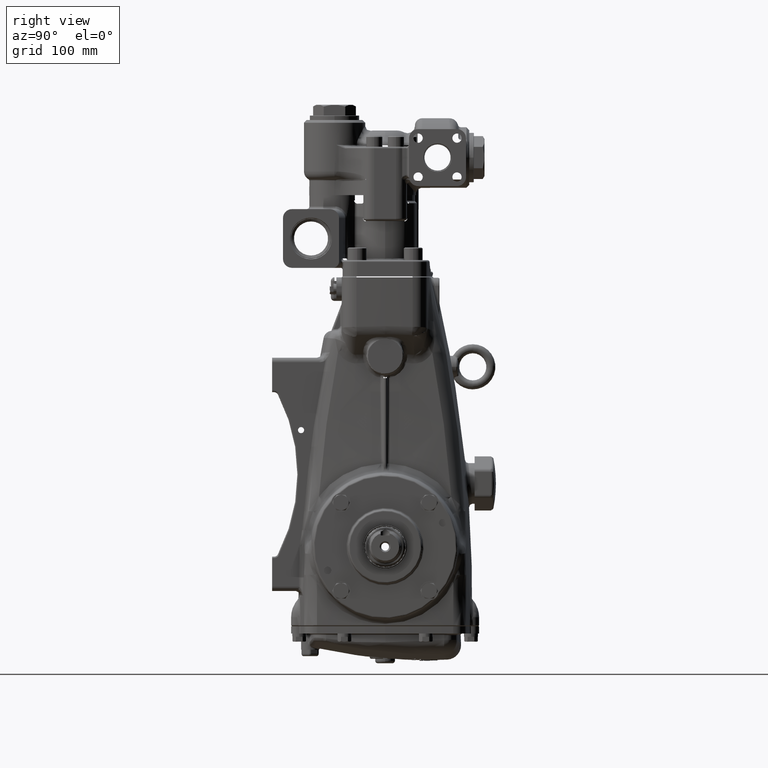
[diagram: clean part render]
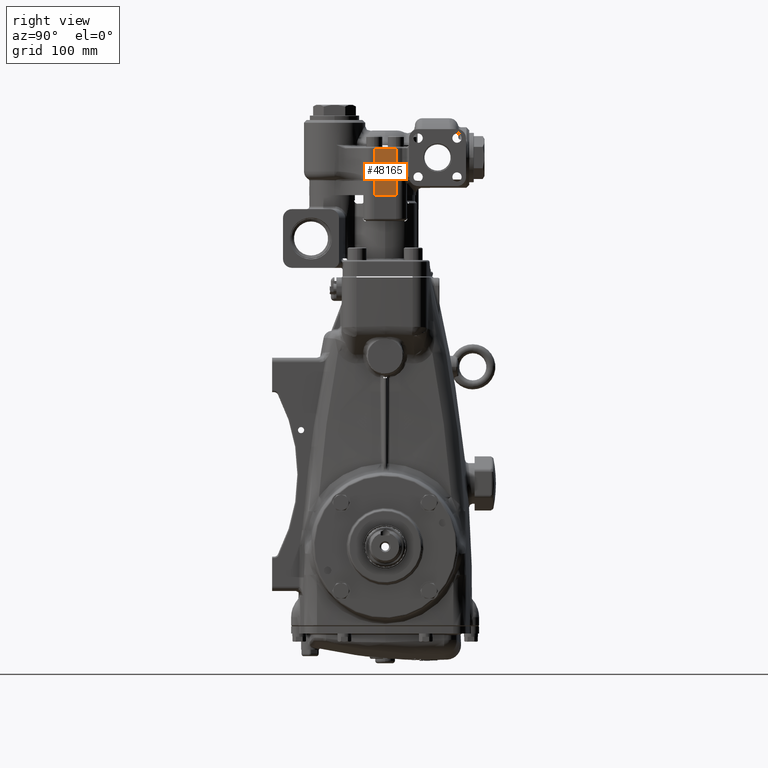
[diagram: same view with one face highlighted and labeled with its STEP entity id]
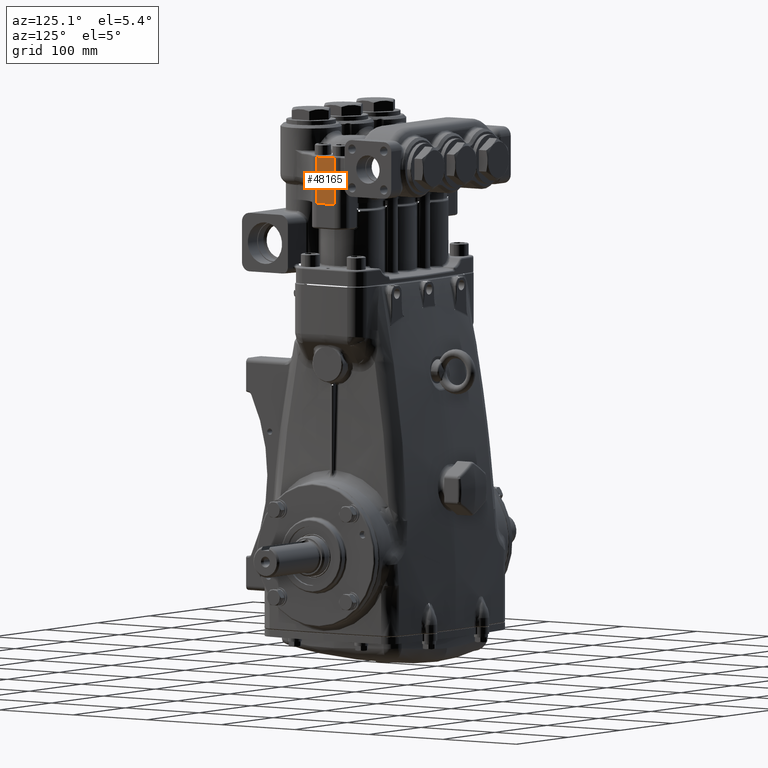
[diagram: same view with one face highlighted and labeled with its STEP entity id]
A machine part, right view. The second image highlights one B-rep face of the part: STEP entity #48165.
A second angle (auxiliary view) of the same face is appended — the face is thin or edge-on in the first view.
In plain terms, the highlighted planar face has unit normal (1, 0, -0).
Its self-contained STEP definition (entity closure, byte-faithful):
#4349 = CARTESIAN_POINT ( 'NONE',  ( 4.488188976377952777, -0.4724409448818860935, 15.31496062992126106 ) ) ;
#15024 = LINE ( 'NONE', #55716, #125857 ) ;
#19619 = EDGE_CURVE ( 'NONE', #69095, #127974, #15024, .T. ) ;
#21118 = CARTESIAN_POINT ( 'NONE',  ( 4.488188976377952777, -0.4724409448818861490, 17.42125984251968518 ) ) ;
#26021 = LINE ( 'NONE', #66702, #129391 ) ;
#30534 = ORIENTED_EDGE ( 'NONE', *, *, #68775, .F. ) ;
#39639 = LINE ( 'NONE', #80331, #53044 ) ;
#42014 = ORIENTED_EDGE ( 'NONE', *, *, #48465, .T. ) ;
#47556 = CARTESIAN_POINT ( 'NONE',  ( 4.488188976377952777, 0.4724409448818867596, 17.42125984251968518 ) ) ;
#48165 = ADVANCED_FACE ( 'NONE', ( #71830 ), #112485, .T. ) ;
#48465 = EDGE_CURVE ( 'NONE', #73851, #111071, #26021, .T. ) ;
#53044 = VECTOR ( 'NONE', #120995, 39.37007874015748143 ) ;
#53257 = EDGE_CURVE ( 'NONE', #69095, #73851, #39639, .T. ) ;
#55716 = CARTESIAN_POINT ( 'NONE',  ( 4.488188976377952777, 0.4724409448818868706, 17.34251968503937036 ) ) ;
#58704 = CARTESIAN_POINT ( 'NONE',  ( 4.488188976377952777, 0.4724409448818867596, 15.31496062992126106 ) ) ;
#61484 = ORIENTED_EDGE ( 'NONE', *, *, #53257, .T. ) ;
#61803 = DIRECTION ( 'NONE',  ( 1.000000000000000000, 0.0000000000000000000, -0.0000000000000000000 ) ) ;
#66702 = CARTESIAN_POINT ( 'NONE',  ( 4.488188976377952777, -0.4724409448818861490, 15.31496062992126106 ) ) ;
#68775 = EDGE_CURVE ( 'NONE', #127974, #111071, #69703, .T. ) ;
#69095 = VERTEX_POINT ( 'NONE', #76616 ) ;
#69703 = LINE ( 'NONE', #47556, #88888 ) ;
#71830 = FACE_OUTER_BOUND ( 'NONE', #104706, .T. ) ;
#73851 = VERTEX_POINT ( 'NONE', #4349 ) ;
#76616 = CARTESIAN_POINT ( 'NONE',  ( 4.488188976377952777, -0.4724409448818860935, 17.34251968503937036 ) ) ;
#80331 = CARTESIAN_POINT ( 'NONE',  ( 4.488188976377952777, -0.4724409448818860935, 17.42125984251968518 ) ) ;
#86586 = CARTESIAN_POINT ( 'NONE',  ( 4.488188976377952777, 0.4724409448818867596, 17.34251968503937036 ) ) ;
#86742 = AXIS2_PLACEMENT_3D ( 'NONE', #21118, #61803, #102520 ) ;
#88247 = DIRECTION ( 'NONE',  ( 0.0000000000000000000, 0.0000000000000000000, -1.000000000000000000 ) ) ;
#88888 = VECTOR ( 'NONE', #88247, 39.37007874015748143 ) ;
#96411 = DIRECTION ( 'NONE',  ( 0.0000000000000000000, 1.000000000000000000, 0.0000000000000000000 ) ) ;
#102520 = DIRECTION ( 'NONE',  ( 0.0000000000000000000, 0.0000000000000000000, 1.000000000000000000 ) ) ;
#104706 = EDGE_LOOP ( 'NONE', ( #61484, #42014, #30534, #105558 ) ) ;
#105558 = ORIENTED_EDGE ( 'NONE', *, *, #19619, .F. ) ;
#107386 = DIRECTION ( 'NONE',  ( 0.0000000000000000000, 1.000000000000000000, 0.0000000000000000000 ) ) ;
#111071 = VERTEX_POINT ( 'NONE', #58704 ) ;
#112485 = PLANE ( 'NONE',  #86742 ) ;
#120995 = DIRECTION ( 'NONE',  ( 0.0000000000000000000, 0.0000000000000000000, -1.000000000000000000 ) ) ;
#125857 = VECTOR ( 'NONE', #96411, 39.37007874015748143 ) ;
#127974 = VERTEX_POINT ( 'NONE', #86586 ) ;
#129391 = VECTOR ( 'NONE', #107386, 39.37007874015748143 ) ;